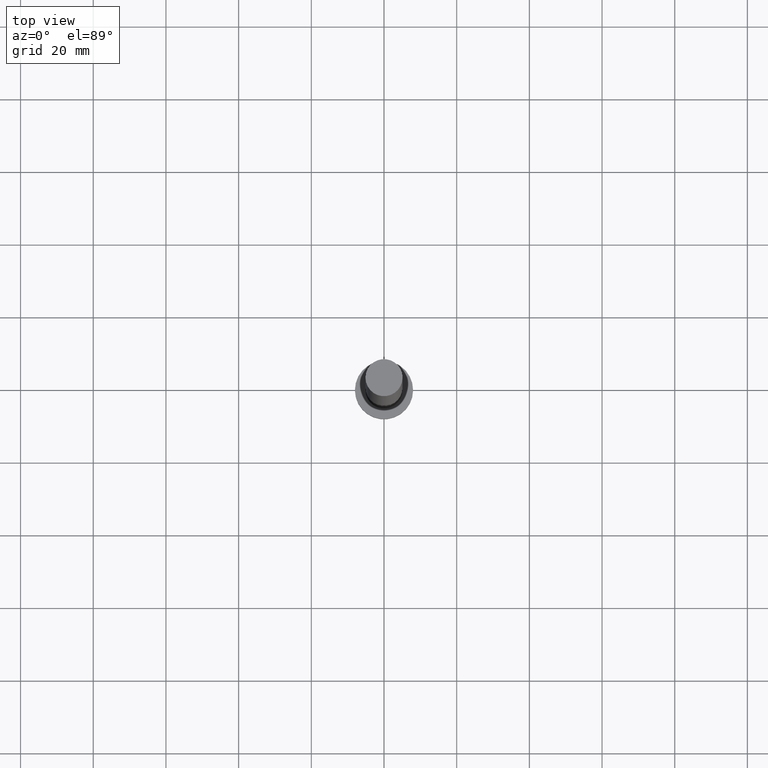
[diagram: clean part render]
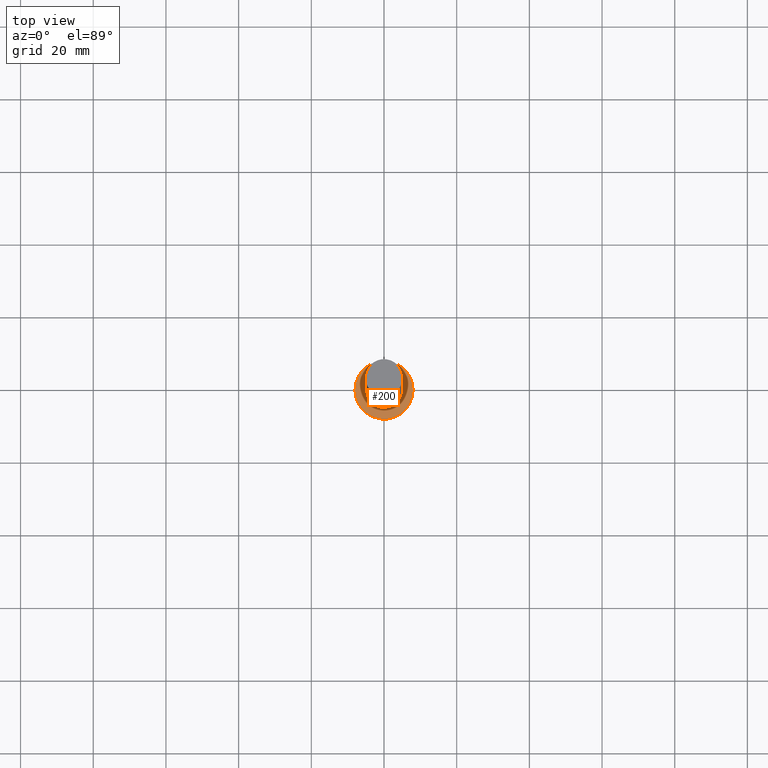
[diagram: same view with one face highlighted and labeled with its STEP entity id]
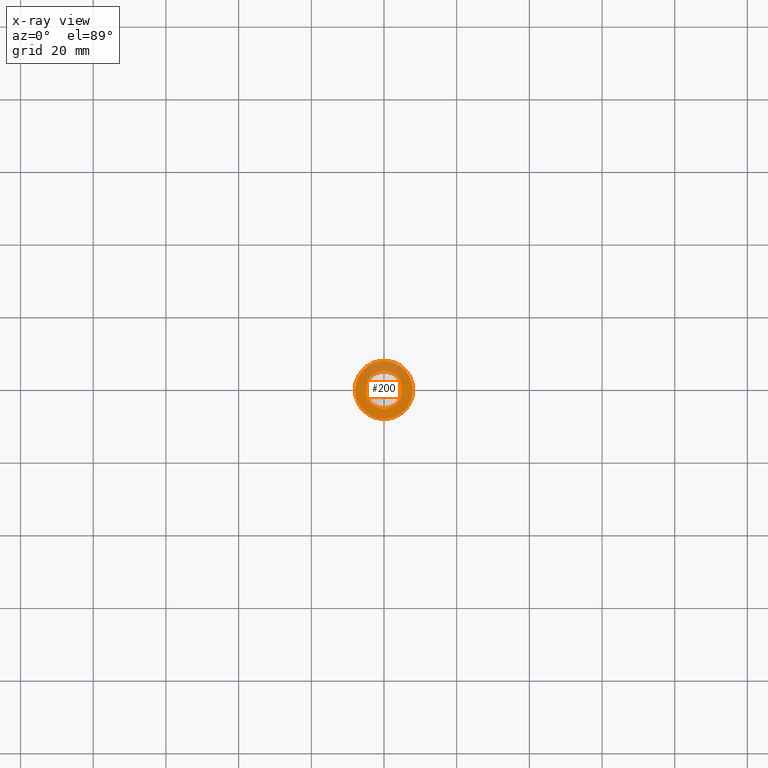
[diagram: x-ray of the same camera — body ghosted, the highlighted face saturated]
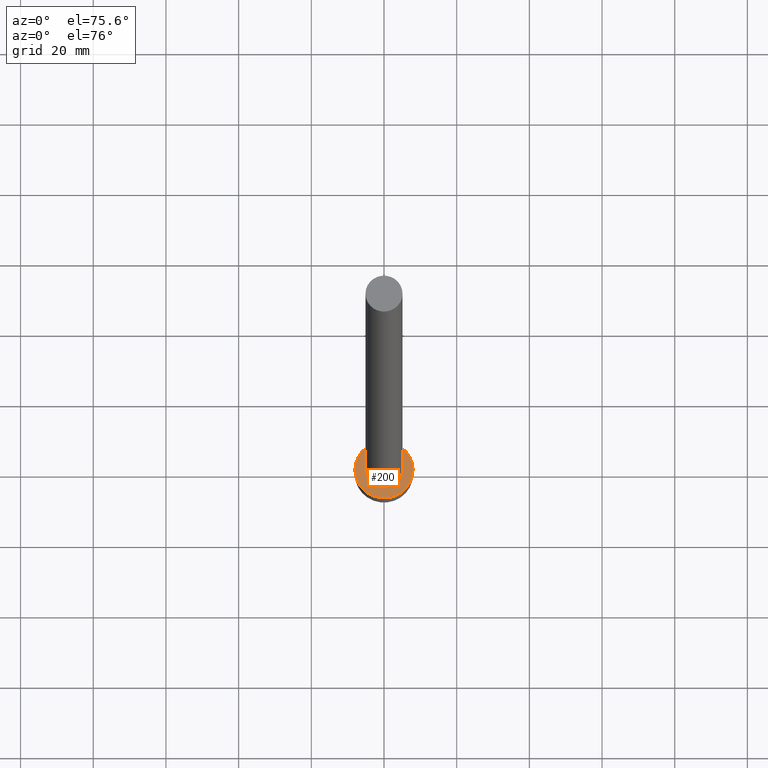
[diagram: same view with one face highlighted and labeled with its STEP entity id]
A machine part, top view. The second image highlights one B-rep face of the part: STEP entity #200.
The next image is the same camera in x-ray: the body ghosted, the highlighted face saturated — about 27% of this face is hidden behind the body in this view.
A second angle (auxiliary view) of the same face is appended — the face is thin or edge-on in the first view.
In plain terms, the highlighted planar face has unit normal (0, 0, 1).
Its self-contained STEP definition (entity closure, byte-faithful):
#1 = EDGE_LOOP ( 'NONE', ( #237, #22 ) ) ;
#14 = DIRECTION ( 'NONE',  ( 1.000000000000000000, 0.000000000000000000, 0.000000000000000000 ) ) ;
#16 = CARTESIAN_POINT ( 'NONE',  ( 0.000000000000000000, 0.000000000000000000, 5.000000000000000000 ) ) ;
#17 = CARTESIAN_POINT ( 'NONE',  ( 0.000000000000000000, 0.000000000000000000, 5.000000000000000000 ) ) ;
#19 = AXIS2_PLACEMENT_3D ( 'NONE', #157, #56, #137 ) ;
#22 = ORIENTED_EDGE ( 'NONE', *, *, #195, .T. ) ;
#37 = FACE_BOUND ( 'NONE', #204, .T. ) ;
#38 = CARTESIAN_POINT ( 'NONE',  ( 0.000000000000000000, 0.000000000000000000, 5.000000000000000000 ) ) ;
#41 = VERTEX_POINT ( 'NONE', #46 ) ;
#45 = CIRCLE ( 'NONE', #149, 8.000000000000000000 ) ;
#46 = CARTESIAN_POINT ( 'NONE',  ( 8.000000000000000000, 9.797174393178825657E-16, 5.000000000000000000 ) ) ;
#56 = DIRECTION ( 'NONE',  ( 0.000000000000000000, 0.000000000000000000, 1.000000000000000000 ) ) ;
#62 = AXIS2_PLACEMENT_3D ( 'NONE', #38, #115, #134 ) ;
#68 = EDGE_CURVE ( 'NONE', #109, #156, #73, .T. ) ;
#73 = CIRCLE ( 'NONE', #117, 5.099999999999999645 ) ;
#77 = DIRECTION ( 'NONE',  ( 1.000000000000000000, 0.000000000000000000, 0.000000000000000000 ) ) ;
#79 = CIRCLE ( 'NONE', #19, 8.000000000000000000 ) ;
#80 = DIRECTION ( 'NONE',  ( 0.000000000000000000, 0.000000000000000000, 1.000000000000000000 ) ) ;
#82 = DIRECTION ( 'NONE',  ( 1.000000000000000000, 0.000000000000000000, 0.000000000000000000 ) ) ;
#86 = DIRECTION ( 'NONE',  ( 0.000000000000000000, 0.000000000000000000, 1.000000000000000000 ) ) ;
#88 = CARTESIAN_POINT ( 'NONE',  ( -8.000000000000000000, 0.000000000000000000, 5.000000000000000000 ) ) ;
#95 = PLANE ( 'NONE',  #62 ) ;
#98 = AXIS2_PLACEMENT_3D ( 'NONE', #17, #152, #77 ) ;
#106 = ORIENTED_EDGE ( 'NONE', *, *, #68, .F. ) ;
#109 = VERTEX_POINT ( 'NONE', #183 ) ;
#115 = DIRECTION ( 'NONE',  ( 0.000000000000000000, 0.000000000000000000, 1.000000000000000000 ) ) ;
#117 = AXIS2_PLACEMENT_3D ( 'NONE', #130, #86, #14 ) ;
#130 = CARTESIAN_POINT ( 'NONE',  ( 0.000000000000000000, 0.000000000000000000, 5.000000000000000000 ) ) ;
#134 = DIRECTION ( 'NONE',  ( 1.000000000000000000, 0.000000000000000000, -0.000000000000000000 ) ) ;
#137 = DIRECTION ( 'NONE',  ( 1.000000000000000000, 0.000000000000000000, 0.000000000000000000 ) ) ;
#149 = AXIS2_PLACEMENT_3D ( 'NONE', #16, #80, #82 ) ;
#150 = CARTESIAN_POINT ( 'NONE',  ( -5.099999999999999645, 0.000000000000000000, 5.000000000000000000 ) ) ;
#152 = DIRECTION ( 'NONE',  ( 0.000000000000000000, 0.000000000000000000, 1.000000000000000000 ) ) ;
#156 = VERTEX_POINT ( 'NONE', #150 ) ;
#157 = CARTESIAN_POINT ( 'NONE',  ( 0.000000000000000000, 0.000000000000000000, 5.000000000000000000 ) ) ;
#183 = CARTESIAN_POINT ( 'NONE',  ( 5.099999999999999645, 6.245698675651500839E-16, 5.000000000000000000 ) ) ;
#184 = VERTEX_POINT ( 'NONE', #88 ) ;
#195 = EDGE_CURVE ( 'NONE', #41, #184, #45, .T. ) ;
#200 = ADVANCED_FACE ( 'NONE', ( #37, #252 ), #95, .T. ) ;
#204 = EDGE_LOOP ( 'NONE', ( #248, #106 ) ) ;
#207 = CIRCLE ( 'NONE', #98, 5.099999999999999645 ) ;
#217 = EDGE_CURVE ( 'NONE', #184, #41, #79, .T. ) ;
#233 = EDGE_CURVE ( 'NONE', #156, #109, #207, .T. ) ;
#237 = ORIENTED_EDGE ( 'NONE', *, *, #217, .T. ) ;
#248 = ORIENTED_EDGE ( 'NONE', *, *, #233, .F. ) ;
#252 = FACE_OUTER_BOUND ( 'NONE', #1, .T. ) ;